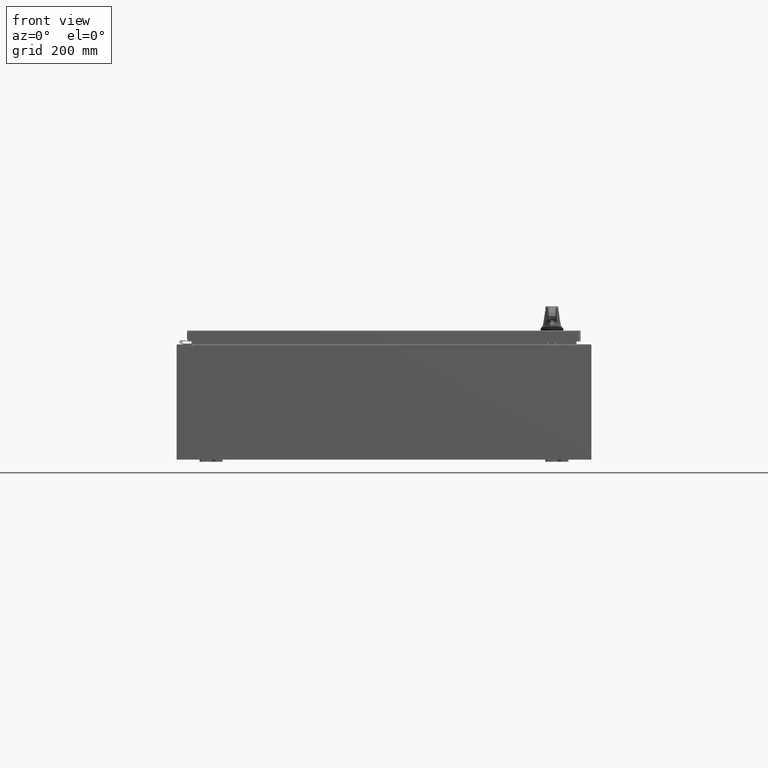
[diagram: clean part render]
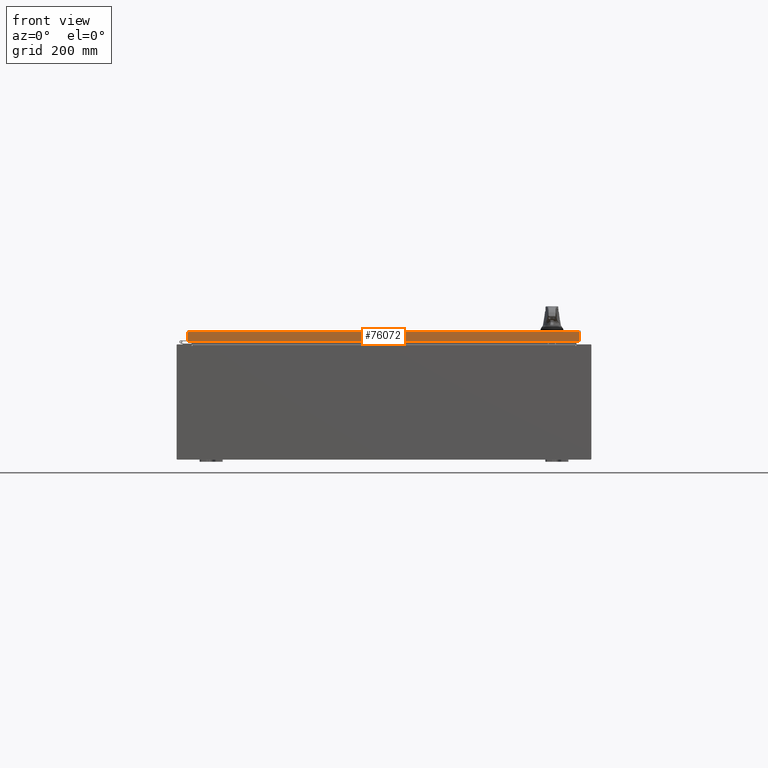
[diagram: same view with one face highlighted and labeled with its STEP entity id]
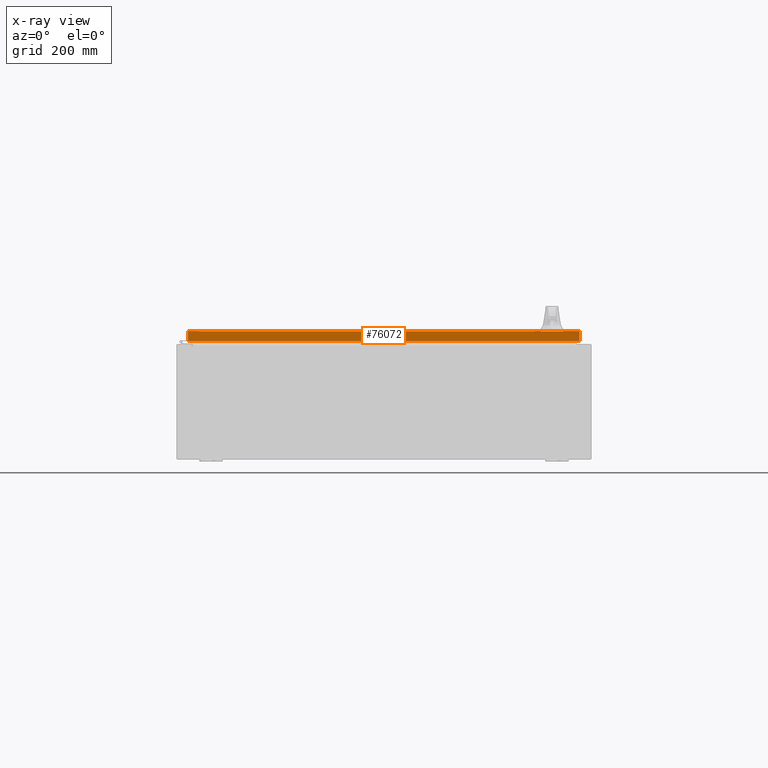
[diagram: x-ray of the same camera — body ghosted, the highlighted face saturated]
A machine part, front view. The second image highlights one B-rep face of the part: STEP entity #76072.
The next image is the same camera in x-ray: the body ghosted, the highlighted face saturated — about 0% of this face is hidden behind the body in this view.
In plain terms, the highlighted planar face has unit normal (-0, 1, -0).
Its self-contained STEP definition (entity closure, byte-faithful):
#5774 = ORIENTED_EDGE ( 'NONE', *, *, #94331, .F. ) ;
#8918 = CARTESIAN_POINT ( 'NONE',  ( 1.496836577439703600E-029, -23.09400000000000100, 1.172282251335225800E-013 ) ) ;
#15476 = AXIS2_PLACEMENT_3D ( 'NONE', #8918, #121870, #60560 ) ;
#22731 = LINE ( 'NONE', #41005, #46859 ) ;
#26057 = EDGE_CURVE ( 'NONE', #127483, #74354, #114119, .T. ) ;
#27013 = LINE ( 'NONE', #28971, #57568 ) ;
#28536 = DIRECTION ( 'NONE',  ( 0.0000000000000000000, -5.064839849203732200E-015, -1.000000000000000000 ) ) ;
#28971 = CARTESIAN_POINT ( 'NONE',  ( 16.98915786437626700, -23.09400000000000100, -0.07469999999999962800 ) ) ;
#29588 = PLANE ( 'NONE',  #15476 ) ;
#32208 = CARTESIAN_POINT ( 'NONE',  ( -16.98915786437626700, -23.09400000000000500, -0.9376999999999954300 ) ) ;
#32379 = VECTOR ( 'NONE', #28536, 39.37007874015748100 ) ;
#37114 = DIRECTION ( 'NONE',  ( -0.0000000000000000000, -5.064839849203732200E-015, -1.000000000000000000 ) ) ;
#41005 = CARTESIAN_POINT ( 'NONE',  ( 17.07799999999999900, -23.09400000000000100, -0.08769999999999550400 ) ) ;
#43256 = ORIENTED_EDGE ( 'NONE', *, *, #43356, .F. ) ;
#43356 = EDGE_CURVE ( 'NONE', #127483, #67681, #22731, .T. ) ;
#46859 = VECTOR ( 'NONE', #92927, 39.37007874015748100 ) ;
#50653 = EDGE_CURVE ( 'NONE', #67681, #83115, #27013, .T. ) ;
#52786 = LINE ( 'NONE', #90037, #104022 ) ;
#57568 = VECTOR ( 'NONE', #37114, 39.37007874015748100 ) ;
#59117 = FACE_OUTER_BOUND ( 'NONE', #73658, .T. ) ;
#60560 = DIRECTION ( 'NONE',  ( 0.0000000000000000000, 5.064839849203732200E-015, 1.000000000000000000 ) ) ;
#60582 = CARTESIAN_POINT ( 'NONE',  ( 16.98915786437626700, -23.09400000000000500, -0.9376999999999997600 ) ) ;
#67681 = VERTEX_POINT ( 'NONE', #97732 ) ;
#73658 = EDGE_LOOP ( 'NONE', ( #43256, #84659, #5774, #91609 ) ) ;
#74354 = VERTEX_POINT ( 'NONE', #32208 ) ;
#76072 = ADVANCED_FACE ( 'NONE', ( #59117 ), #29588, .F. ) ;
#81815 = DIRECTION ( 'NONE',  ( -1.000000000000000000, 8.758115402030108600E-047, 1.279703943630056800E-016 ) ) ;
#83115 = VERTEX_POINT ( 'NONE', #60582 ) ;
#84659 = ORIENTED_EDGE ( 'NONE', *, *, #26057, .T. ) ;
#88164 = CARTESIAN_POINT ( 'NONE',  ( -16.98915786437626700, -23.09400000000000100, -0.08769999999999550400 ) ) ;
#90037 = CARTESIAN_POINT ( 'NONE',  ( 17.07799999999999900, -23.09400000000000500, -0.9376999999999997600 ) ) ;
#91609 = ORIENTED_EDGE ( 'NONE', *, *, #50653, .F. ) ;
#92927 = DIRECTION ( 'NONE',  ( 1.000000000000000000, 6.481495528880677800E-031, -3.349804276043092000E-045 ) ) ;
#94331 = EDGE_CURVE ( 'NONE', #83115, #74354, #52786, .T. ) ;
#97732 = CARTESIAN_POINT ( 'NONE',  ( 16.98915786437626700, -23.09400000000000100, -0.08769999999999550400 ) ) ;
#104022 = VECTOR ( 'NONE', #81815, 39.37007874015748100 ) ;
#114119 = LINE ( 'NONE', #130664, #32379 ) ;
#121870 = DIRECTION ( 'NONE',  ( -6.481495528880676900E-031, 1.000000000000000000, -5.064839849203732200E-015 ) ) ;
#127483 = VERTEX_POINT ( 'NONE', #88164 ) ;
#130664 = CARTESIAN_POINT ( 'NONE',  ( -16.98915786437627100, -23.09400000000000100, 1.172282251335225800E-013 ) ) ;